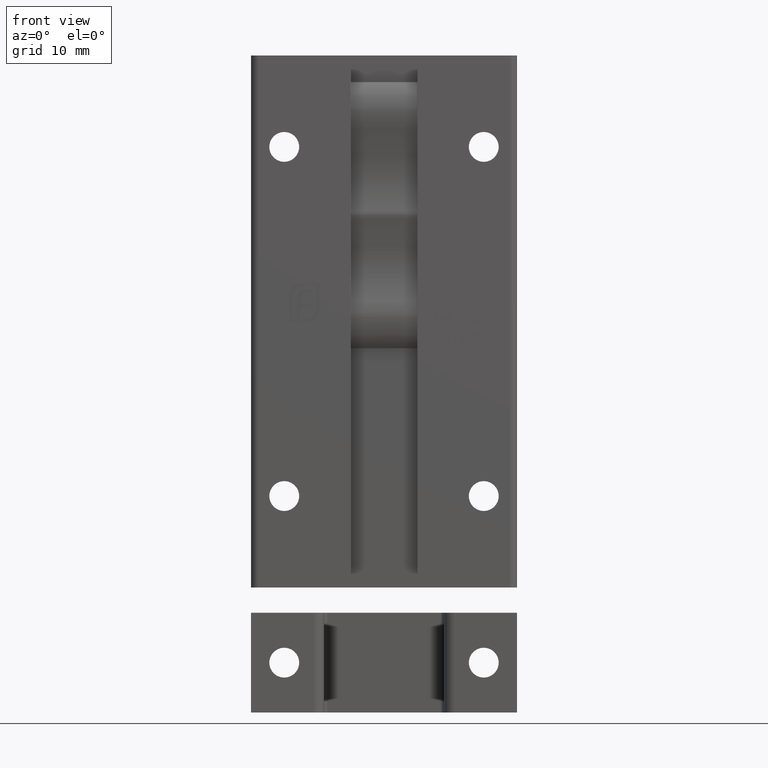
[diagram: clean part render]
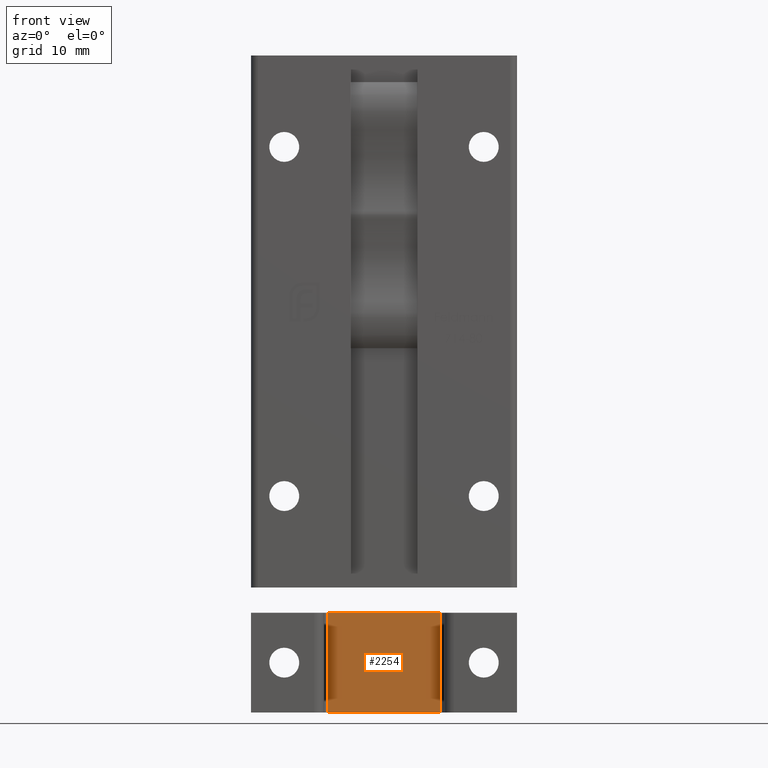
[diagram: same view with one face highlighted and labeled with its STEP entity id]
A machine part, front view. The second image highlights one B-rep face of the part: STEP entity #2254.
In plain terms, the highlighted planar face has unit normal (0, -1, 0).
Its self-contained STEP definition (entity closure, byte-faithful):
#394 = LINE ( 'NONE', #7145, #9222 ) ;
#659 = LINE ( 'NONE', #15260, #11069 ) ;
#669 = ORIENTED_EDGE ( 'NONE', *, *, #1120, .T. ) ;
#1120 = EDGE_CURVE ( 'NONE', #12997, #3658, #394, .T. ) ;
#1150 = ORIENTED_EDGE ( 'NONE', *, *, #9841, .T. ) ;
#1419 = CARTESIAN_POINT ( 'NONE',  ( -9.000000000000000000, 10.50000000000000000, 7.500000000000000000 ) ) ;
#1500 = CARTESIAN_POINT ( 'NONE',  ( -9.000000000000000000, 10.50000000000000000, -7.500000000000000000 ) ) ;
#1557 = PLANE ( 'NONE',  #9954 ) ;
#1873 = CARTESIAN_POINT ( 'NONE',  ( -8.499999999999998224, 10.50000000000000000, -7.500000000000000000 ) ) ;
#2254 = ADVANCED_FACE ( 'NONE', ( #10592 ), #1557, .T. ) ;
#2410 = LINE ( 'NONE', #5885, #9691 ) ;
#2958 = VERTEX_POINT ( 'NONE', #5212 ) ;
#3658 = VERTEX_POINT ( 'NONE', #4688 ) ;
#4688 = CARTESIAN_POINT ( 'NONE',  ( 8.499999999999998224, 10.50000000000000000, -7.500000000000000000 ) ) ;
#5212 = CARTESIAN_POINT ( 'NONE',  ( 8.499999999999998224, 10.50000000000000000, 7.500000000000000000 ) ) ;
#5674 = CARTESIAN_POINT ( 'NONE',  ( -8.499999999999998224, 10.50000000000000000, 7.500000000000000000 ) ) ;
#5885 = CARTESIAN_POINT ( 'NONE',  ( -8.499999999999998224, 10.50000000000000000, -7.500000000000000000 ) ) ;
#7145 = CARTESIAN_POINT ( 'NONE',  ( -9.000000000000000000, 10.50000000000000000, -7.500000000000000000 ) ) ;
#7233 = DIRECTION ( 'NONE',  ( 0.000000000000000000, 0.000000000000000000, 1.000000000000000000 ) ) ;
#7654 = LINE ( 'NONE', #1419, #7851 ) ;
#7851 = VECTOR ( 'NONE', #9031, 1000.000000000000000 ) ;
#9031 = DIRECTION ( 'NONE',  ( 1.000000000000000000, 0.000000000000000000, 0.000000000000000000 ) ) ;
#9222 = VECTOR ( 'NONE', #13403, 1000.000000000000000 ) ;
#9576 = EDGE_CURVE ( 'NONE', #12997, #14428, #2410, .T. ) ;
#9691 = VECTOR ( 'NONE', #7233, 1000.000000000000000 ) ;
#9841 = EDGE_CURVE ( 'NONE', #3658, #2958, #659, .T. ) ;
#9954 = AXIS2_PLACEMENT_3D ( 'NONE', #1500, #14153, #10285 ) ;
#10285 = DIRECTION ( 'NONE',  ( 0.000000000000000000, -0.000000000000000000, -1.000000000000000000 ) ) ;
#10286 = DIRECTION ( 'NONE',  ( 0.000000000000000000, 0.000000000000000000, 1.000000000000000000 ) ) ;
#10592 = FACE_OUTER_BOUND ( 'NONE', #12701, .T. ) ;
#11069 = VECTOR ( 'NONE', #10286, 1000.000000000000000 ) ;
#11114 = ORIENTED_EDGE ( 'NONE', *, *, #9576, .F. ) ;
#11842 = ORIENTED_EDGE ( 'NONE', *, *, #11899, .F. ) ;
#11899 = EDGE_CURVE ( 'NONE', #14428, #2958, #7654, .T. ) ;
#12701 = EDGE_LOOP ( 'NONE', ( #11842, #11114, #669, #1150 ) ) ;
#12997 = VERTEX_POINT ( 'NONE', #1873 ) ;
#13403 = DIRECTION ( 'NONE',  ( 1.000000000000000000, 0.000000000000000000, 0.000000000000000000 ) ) ;
#14153 = DIRECTION ( 'NONE',  ( 0.000000000000000000, -1.000000000000000000, 0.000000000000000000 ) ) ;
#14428 = VERTEX_POINT ( 'NONE', #5674 ) ;
#15260 = CARTESIAN_POINT ( 'NONE',  ( 8.499999999999998224, 10.50000000000000000, -7.500000000000000000 ) ) ;